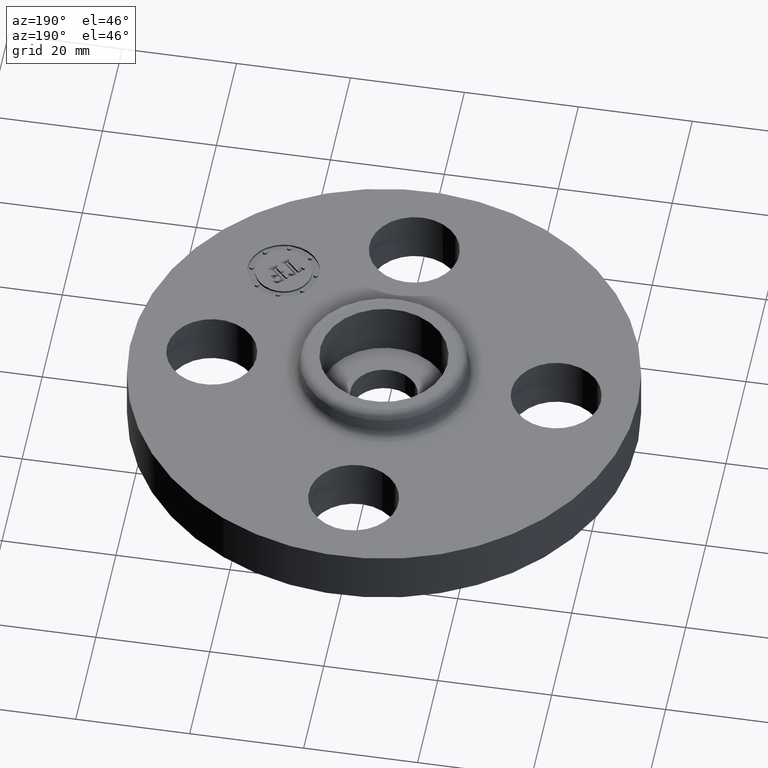
[diagram: clean part render]
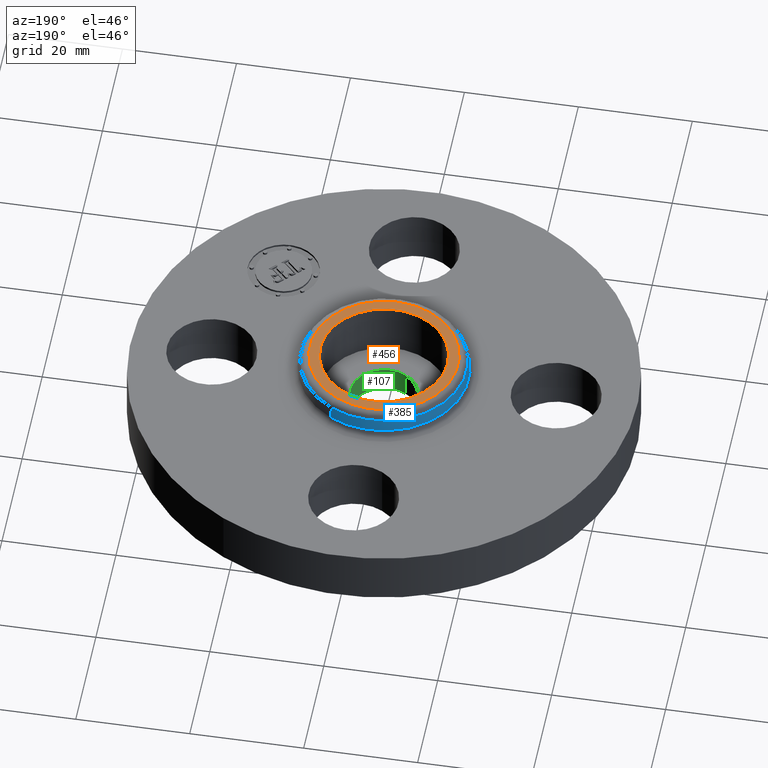
[diagram: same view with three faces highlighted in distinct colors, each labeled with its STEP entity id]
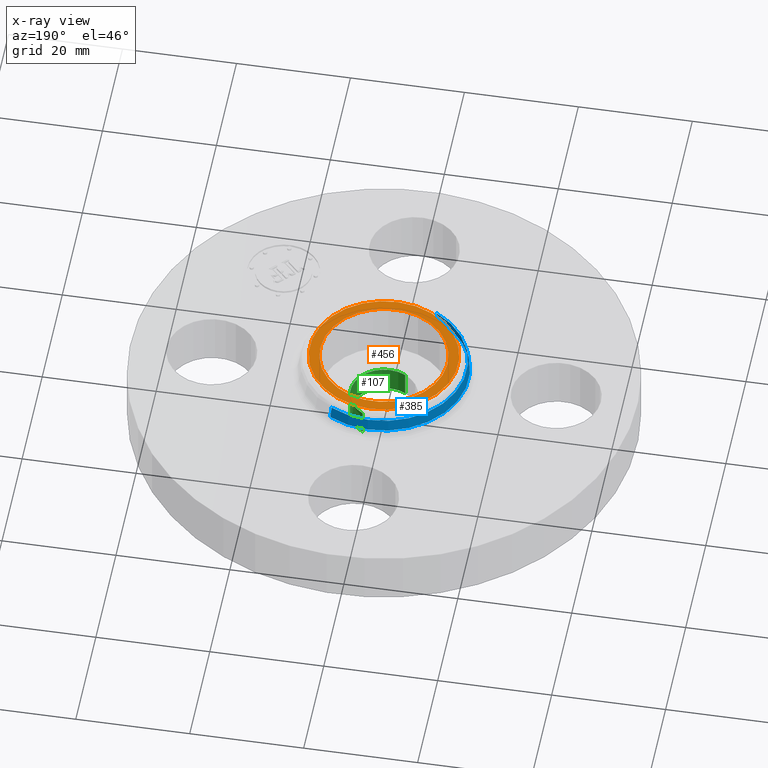
[diagram: x-ray of the same camera — body ghosted, the three highlighted faces saturated]
A machine part, auxiliary view with three faces highlighted in distinct colors.
The next image is the same camera in x-ray (body ghosted, the three faces saturated) — at least one of them is partly hidden behind the body in this view.
Their STEP definitions:

[orange] entity #456 — the highlighted planar face has unit normal (0, 0, -1).
#400=AXIS2_PLACEMENT_3D('Circle Axis2P3D',#398,#399,$) ;
#419=AXIS2_PLACEMENT_3D('Circle Axis2P3D',#417,#418,$) ;
#432=AXIS2_PLACEMENT_3D('Plane Axis2P3D',#429,#430,#431) ;
#440=AXIS2_PLACEMENT_3D('Circle Axis2P3D',#438,#439,$) ;
#449=AXIS2_PLACEMENT_3D('Circle Axis2P3D',#447,#448,$) ;
#395=CARTESIAN_POINT('Vertex',(0.245904629528,0.450125405063,0.560000000002)) ;
#398=CARTESIAN_POINT('Axis2P3D Location',(0.,0.,0.560000000002)) ;
#402=CARTESIAN_POINT('Vertex',(-0.245904629528,-0.450125405063,0.560000000002)) ;
#417=CARTESIAN_POINT('Axis2P3D Location',(0.,0.,0.560000000002)) ;
#429=CARTESIAN_POINT('Axis2P3D Location',(0.,0.512915165604,0.560000000002)) ;
#438=CARTESIAN_POINT('Axis2P3D Location',(0.,-6.99353086378E-017,0.560000000002)) ;
#442=CARTESIAN_POINT('Vertex',(-0.386136327233,0.210947236987,0.560000000002)) ;
#444=CARTESIAN_POINT('Vertex',(0.386136327233,-0.210947236987,0.560000000002)) ;
#447=CARTESIAN_POINT('Axis2P3D Location',(-5.24514814784E-017,-1.39870617276E-016,0.560000000002)) ;
#399=DIRECTION('Axis2P3D Direction',(0.,0.,-0.0393700787402)) ;
#418=DIRECTION('Axis2P3D Direction',(0.,0.,-0.0393700787402)) ;
#430=DIRECTION('Axis2P3D Direction',(0.,0.,-0.0393700787402)) ;
#431=DIRECTION('Axis2P3D XDirection',(0.0393700787402,0.,0.)) ;
#439=DIRECTION('Axis2P3D Direction',(0.,0.,-0.0393700787402)) ;
#448=DIRECTION('Axis2P3D Direction',(0.,0.,-0.0393700787402)) ;
#435=ORIENTED_EDGE('',*,*,#404,.F.) ;
#436=ORIENTED_EDGE('',*,*,#421,.F.) ;
#453=ORIENTED_EDGE('',*,*,#446,.T.) ;
#454=ORIENTED_EDGE('',*,*,#451,.T.) ;
#455=FACE_BOUND('',#452,.T.) ;
#456=ADVANCED_FACE('PartBody',(#437,#455),#433,.F.) ;
#401=CIRCLE('generated circle',#400,0.512915165604) ;
#420=CIRCLE('generated circle',#419,0.512915165604) ;
#441=CIRCLE('generated circle',#440,0.440000000002) ;
#450=CIRCLE('generated circle',#449,0.440000000002) ;
#404=EDGE_CURVE('',#396,#403,#401,.T.) ;
#421=EDGE_CURVE('',#403,#396,#420,.T.) ;
#446=EDGE_CURVE('',#443,#445,#441,.T.) ;
#451=EDGE_CURVE('',#445,#443,#450,.T.) ;
#434=EDGE_LOOP('',(#435,#436)) ;
#452=EDGE_LOOP('',(#453,#454)) ;
#437=FACE_OUTER_BOUND('',#434,.T.) ;
#433=PLANE('',#432) ;
#396=VERTEX_POINT('',#395) ;
#403=VERTEX_POINT('',#402) ;
#443=VERTEX_POINT('',#442) ;
#445=VERTEX_POINT('',#444) ;

[blue] entity #385 — the highlighted conical surface has half-angle 10 deg.
#333=AXIS2_PLACEMENT_3D('Circle Axis2P3D',#331,#332,$) ;
#346=AXIS2_PLACEMENT_3D('Cone Axis2P3D',#343,#344,#345) ;
#376=AXIS2_PLACEMENT_3D('Circle Axis2P3D',#374,#375,$) ;
#304=CARTESIAN_POINT('Vertex',(0.281066823783,0.514489369916,0.429581109342)) ;
#311=CARTESIAN_POINT('Vertex',(-0.281066823783,-0.514489369916,0.429581109342)) ;
#331=CARTESIAN_POINT('Axis2P3D Location',(0.,0.,0.429581109342)) ;
#343=CARTESIAN_POINT('Axis2P3D Location',(0.,0.,0.510418890662)) ;
#348=CARTESIAN_POINT('Line Origine',(0.277649986278,0.508234890815,0.470000000002)) ;
#352=CARTESIAN_POINT('Vertex',(0.274233148773,0.501980411715,0.510418890662)) ;
#359=CARTESIAN_POINT('Vertex',(-0.274233148773,-0.501980411715,0.510418890662)) ;
#362=CARTESIAN_POINT('Line Origine',(-0.277649986278,-0.508234890815,0.470000000002)) ;
#374=CARTESIAN_POINT('Axis2P3D Location',(0.,0.,0.510418890662)) ;
#332=DIRECTION('Axis2P3D Direction',(0.,0.,-0.0393700787402)) ;
#344=DIRECTION('Axis2P3D Direction',(0.,0.,-0.0393700787402)) ;
#345=DIRECTION('Axis2P3D XDirection',(-0.0188750212049,-0.0345504945626,0.)) ;
#349=DIRECTION('Vector Direction',(0.00327761303565,0.00599963041829,-0.03877195878)) ;
#363=DIRECTION('Vector Direction',(-0.00327761303565,-0.00599963041829,-0.03877195878)) ;
#375=DIRECTION('Axis2P3D Direction',(0.,0.,-0.0393700787402)) ;
#350=VECTOR('Line Direction',#349,0.0393700787402) ;
#364=VECTOR('Line Direction',#363,0.0393700787402) ;
#380=ORIENTED_EDGE('',*,*,#335,.F.) ;
#381=ORIENTED_EDGE('',*,*,#366,.T.) ;
#382=ORIENTED_EDGE('',*,*,#378,.T.) ;
#383=ORIENTED_EDGE('',*,*,#354,.F.) ;
#385=ADVANCED_FACE('PartBody',(#384),#347,.T.) ;
#334=CIRCLE('generated circle',#333,0.586257512692) ;
#377=CIRCLE('generated circle',#376,0.572003630785) ;
#347=CONICAL_SURFACE('Cone',#346,0.572003630785,0.174532925199) ;
#335=EDGE_CURVE('',#312,#305,#334,.T.) ;
#354=EDGE_CURVE('',#305,#353,#351,.F.) ;
#366=EDGE_CURVE('',#312,#360,#365,.F.) ;
#378=EDGE_CURVE('',#360,#353,#377,.T.) ;
#379=EDGE_LOOP('',(#380,#381,#382,#383)) ;
#384=FACE_OUTER_BOUND('',#379,.T.) ;
#351=LINE('Line',#348,#350) ;
#365=LINE('Line',#362,#364) ;
#305=VERTEX_POINT('',#304) ;
#312=VERTEX_POINT('',#311) ;
#353=VERTEX_POINT('',#352) ;
#360=VERTEX_POINT('',#359) ;

[green] entity #107 — the highlighted cylindrical surface (edge-blend (fillet) strip) has radius 5.8928 mm, axis along (0, 0, -1).
#69=AXIS2_PLACEMENT_3D('Circle Axis2P3D',#67,#68,$) ;
#80=AXIS2_PLACEMENT_3D('Cylinder Axis2P3D',#77,#78,#79) ;
#91=AXIS2_PLACEMENT_3D('Circle Axis2P3D',#89,#90,$) ;
#62=CARTESIAN_POINT('Vertex',(-0.111226724957,-0.203599154359,0.180000000001)) ;
#64=CARTESIAN_POINT('Vertex',(0.111226724957,0.203599154359,0.180000000001)) ;
#67=CARTESIAN_POINT('Axis2P3D Location',(3.49676543189E-017,1.74838271595E-017,0.180000000001)) ;
#77=CARTESIAN_POINT('Axis2P3D Location',(0.,0.,0.280000000001)) ;
#82=CARTESIAN_POINT('Line Origine',(0.111226724957,0.203599154359,0.0900000000004)) ;
#86=CARTESIAN_POINT('Vertex',(0.111226724957,0.203599154359,-2.412768148E-015)) ;
#89=CARTESIAN_POINT('Axis2P3D Location',(0.,0.,-2.51767111096E-015)) ;
#93=CARTESIAN_POINT('Vertex',(-0.111226724957,-0.203599154359,-2.412768148E-015)) ;
#96=CARTESIAN_POINT('Line Origine',(-0.111226724957,-0.203599154359,0.0900000000004)) ;
#68=DIRECTION('Axis2P3D Direction',(0.,0.,-0.0393700787402)) ;
#78=DIRECTION('Axis2P3D Direction',(0.,0.,-0.0393700787402)) ;
#79=DIRECTION('Axis2P3D XDirection',(-0.0188750212049,-0.0345504945626,0.)) ;
#83=DIRECTION('Vector Direction',(0.,0.,-0.0393700787402)) ;
#90=DIRECTION('Axis2P3D Direction',(0.,0.,-0.0393700787402)) ;
#97=DIRECTION('Vector Direction',(0.,0.,-0.0393700787402)) ;
#84=VECTOR('Line Direction',#83,0.0393700787402) ;
#98=VECTOR('Line Direction',#97,0.0393700787402) ;
#102=ORIENTED_EDGE('',*,*,#88,.T.) ;
#103=ORIENTED_EDGE('',*,*,#95,.T.) ;
#104=ORIENTED_EDGE('',*,*,#100,.F.) ;
#105=ORIENTED_EDGE('',*,*,#71,.F.) ;
#107=ADVANCED_FACE('PartBody',(#106),#81,.F.) ;
#70=CIRCLE('generated circle',#69,0.232000000001) ;
#92=CIRCLE('generated circle',#91,0.232000000001) ;
#81=CYLINDRICAL_SURFACE('generated cylinder',#80,0.232000000001) ;
#71=EDGE_CURVE('',#65,#63,#70,.T.) ;
#88=EDGE_CURVE('',#65,#87,#85,.T.) ;
#95=EDGE_CURVE('',#87,#94,#92,.T.) ;
#100=EDGE_CURVE('',#63,#94,#99,.T.) ;
#101=EDGE_LOOP('',(#102,#103,#104,#105)) ;
#106=FACE_OUTER_BOUND('',#101,.T.) ;
#85=LINE('Line',#82,#84) ;
#99=LINE('Line',#96,#98) ;
#63=VERTEX_POINT('',#62) ;
#65=VERTEX_POINT('',#64) ;
#87=VERTEX_POINT('',#86) ;
#94=VERTEX_POINT('',#93) ;